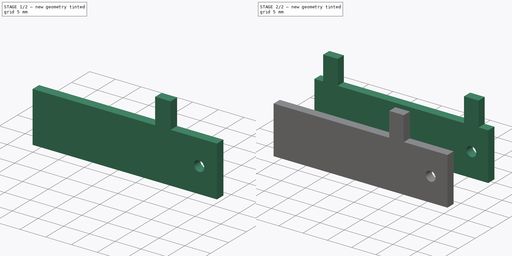
[diagram: build sequence overview — one tinted view per stage of 2, left to right]
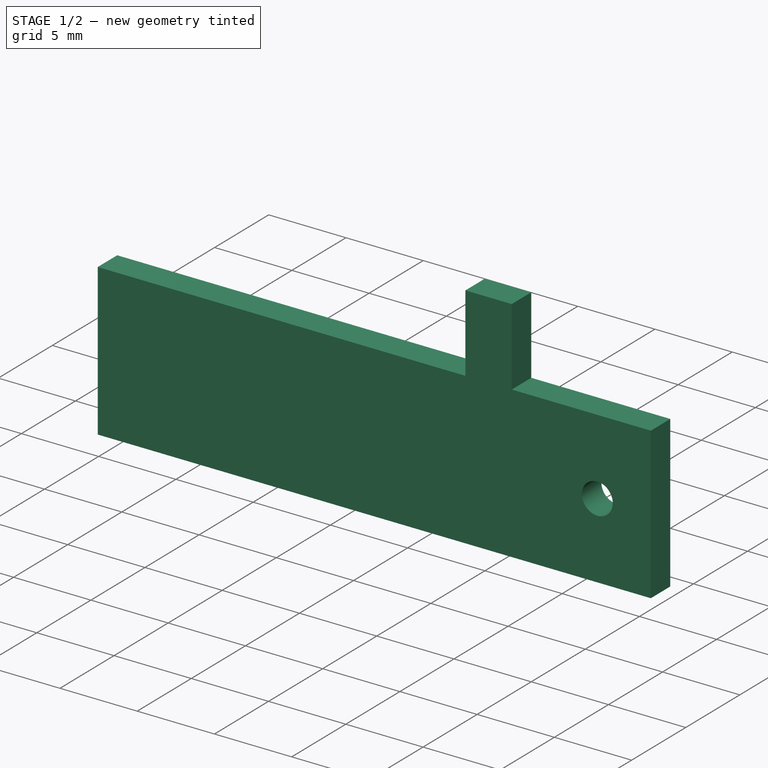
[diagram: stage 1 of 2 — iso view after this stage's code; geometry added in this stage tinted green]
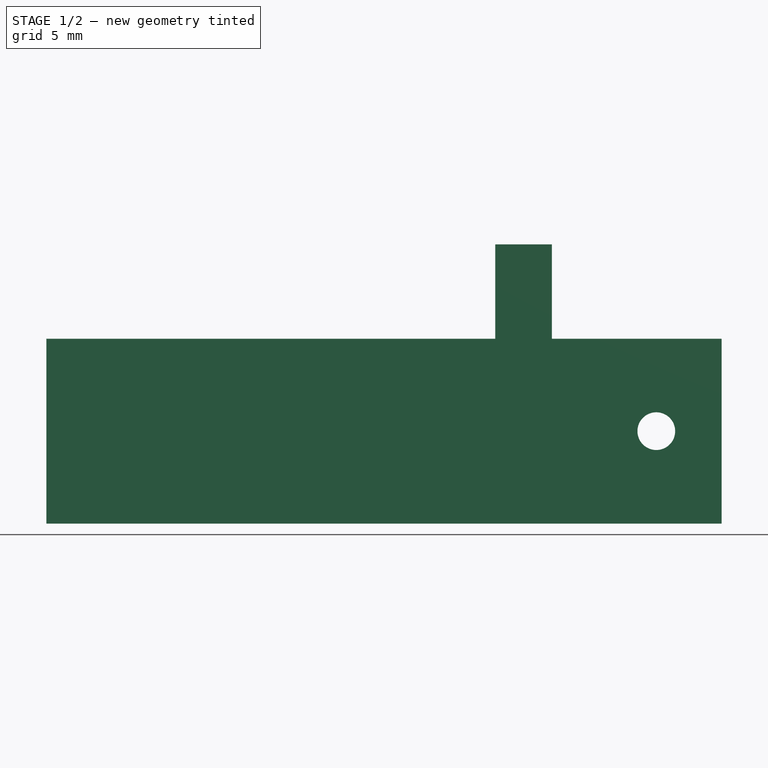
[diagram: stage 1 of 2 — front view after this stage's code; geometry added in this stage tinted green]
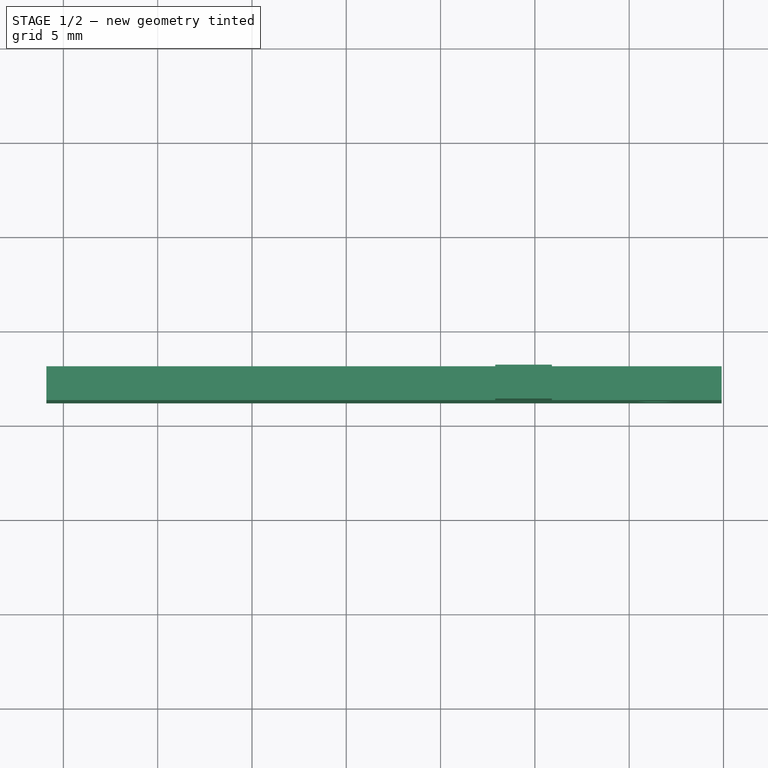
[diagram: stage 1 of 2 — top view after this stage's code; geometry added in this stage tinted green]
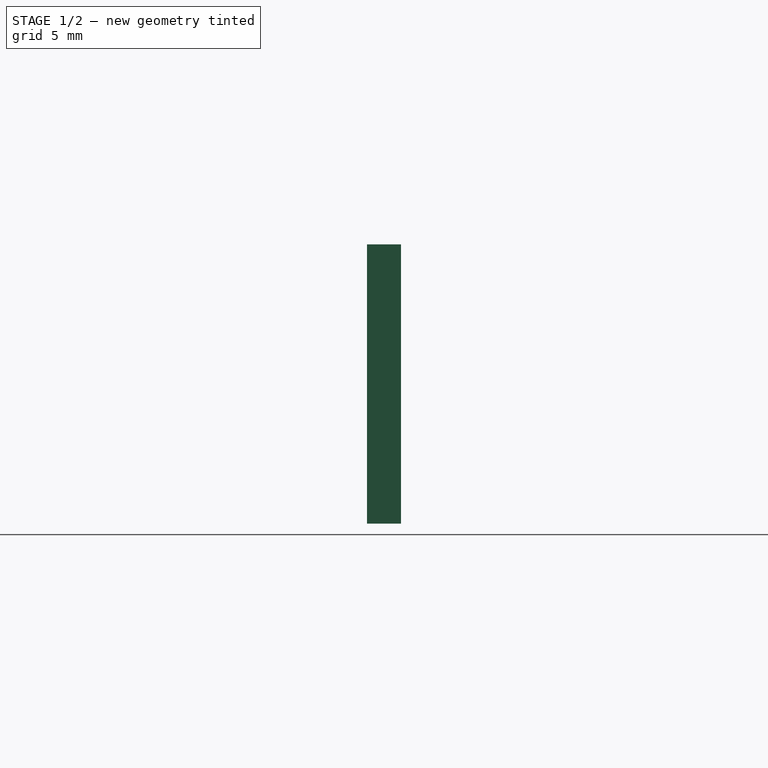
[diagram: stage 1 of 2 — right view after this stage's code; geometry added in this stage tinted green]
FCSTD DOCUMENT  (FreeCAD 0.20R29410 (Git))
Label: Position Holders
License: All rights reserved
LicenseURL: http://en.wikipedia.org/wiki/All_rights_reserved
objects: Sketcher::SketchObject×2, Part::Extrusion×2
note: 4 computed .brp shape members not serialized (recipe doc carries the construction recipe); baked Part::Feature solids carry a one-line shape summary decoded from their .brp

FEATURE [Sketcher::SketchObject] Sketch026  label="position_holder_side"
  FullyConstrained = true
  MapMode = 5
  Placement = pos=(0,53,0) rot=(0,0.707107,0.707107;3.14159rad)
  sketch-geometry (19):
    g0: LineSegment StartX=35.9 StartY=10 StartZ=0 EndX=35.9 EndY=0.2 EndZ=0
    g1: LineSegment StartX=35.9 StartY=0.2 StartZ=0 EndX=0.1 EndY=0.2 EndZ=0
    g2: LineSegment StartX=0.1 StartY=0.2 StartZ=0 EndX=0.1 EndY=10 EndZ=0
    g3: LineSegment StartX=36 StartY=10 StartZ=0 EndX=35.9 EndY=10 EndZ=0
    g4: LineSegment StartX=0.1 StartY=10 StartZ=0 EndX=0 EndY=10 EndZ=0
    g5: LineSegment StartX=35.9 StartY=0.2 StartZ=0 EndX=35.9 EndY=0 EndZ=0
    g6: LineSegment StartX=0.1 StartY=10 StartZ=0 EndX=9.1 EndY=10 EndZ=0
    g7: LineSegment StartX=35.9 StartY=10 StartZ=0 EndX=12.1 EndY=10 EndZ=0
    g8: LineSegment StartX=12.1 StartY=10 StartZ=0 EndX=12.1 EndY=15 EndZ=0
    g9: LineSegment StartX=12.1 StartY=15 StartZ=0 EndX=9.1 EndY=15 EndZ=0
    g10: LineSegment StartX=9.1 StartY=15 StartZ=0 EndX=9.1 EndY=10 EndZ=0
    g11: LineSegment StartX=12.1 StartY=15 StartZ=0 EndX=38.1 EndY=15 EndZ=0
    g12: LineSegment StartX=0 StartY=0 StartZ=0 EndX=36 EndY=0 EndZ=0
    g13: LineSegment StartX=36 StartY=10 StartZ=0 EndX=36 EndY=0 EndZ=0
    g14: LineSegment StartX=12.1 StartY=10 StartZ=0 EndX=9.1 EndY=10 EndZ=0
    g15: Circle CenterX=3.56266 CenterY=5.1 CenterZ=0 NormalX=0 NormalY=0 NormalZ=1 AngleXU=0 Radius=1
    g16: LineSegment StartX=0 StartY=0 StartZ=0 EndX=0 EndY=10 EndZ=0
    g17: LineSegment StartX=0.1 StartY=10 StartZ=0 EndX=3.56266 EndY=5.1 EndZ=0
    g18: LineSegment StartX=0.1 StartY=0.2 StartZ=0 EndX=3.56266 EndY=5.1 EndZ=0
  constraints (52):
    c: Coincident(g0,g1)
    c: Coincident(g1,g2)
    c: Horizontal(g1)
    c: Vertical(g0)
    c: Vertical(g2)
    c: Coincident(g5,g0)
    c: Vertical(g5)
    c: DistanceX(g3,g3) = 0.1
    c: DistanceY(g5,g5) = 0.2
    c: Coincident(g4,g2)
    c: Coincident(g0,g3)
    c: Coincident(g6,g2)
    c: Horizontal(g7)
    c: Coincident(g8,g7)
    c: Vertical(g8)
    c: Coincident(g9,g8)
    c: Horizontal(g9)
    c: Coincident(g10,g9)
    c: Coincident(g10,g6)
    c: Horizontal(g6)
    c: Vertical(g10)
    c: Coincident(g11,g8)
    c: Horizontal(g11)
    c: DistanceX(g9,g9) = 3
    c: DistanceX(g11,g11) = 26
    c: DistanceY(g10,g10) = 5
    c: DistanceX(g6,g6) = 9
    c: Horizontal(g12)
    c: Distance(g12) = 36
    c: Vertical(g13)
    c: Distance(g13) = 10
    c: Coincident(g13,g12)
    c: Coincident(g13,g3)
    c: PointOnObject(g5,g12)
    c: Horizontal(g3)
    c: Coincident(g14,g7)
    c: Coincident(g14,g6)
    c: Horizontal(g14)
    c: Coincident(g12,g-1)
    c: Coincident(g7,g0)
    c: Horizontal(g4)
    c: Coincident(g16,g12)
    c: Coincident(g16,g4)
    c: Vertical(g16)
    c: Equal(g4,g3)
    c: Coincident(g17,g2)
    c: Coincident(g17,g15)
    c: Coincident(g18,g1)
    c: Coincident(g18,g15)
    c: Equal(g17,g18)
    c: Diameter(g15) = 2
    c: Distance(g17) = 6
FEATURE [Part::Extrusion] Extrude028  label="position_holder_side_body"
  Base = -> Sketch026
  Dir = (0,1,-2e-16)
  DirMode = 2
  FaceMakerClass = Part::FaceMakerBullseye
  LengthFwd = 0
  LengthRev = 1.8
  Solid = true
  Symmetric = false
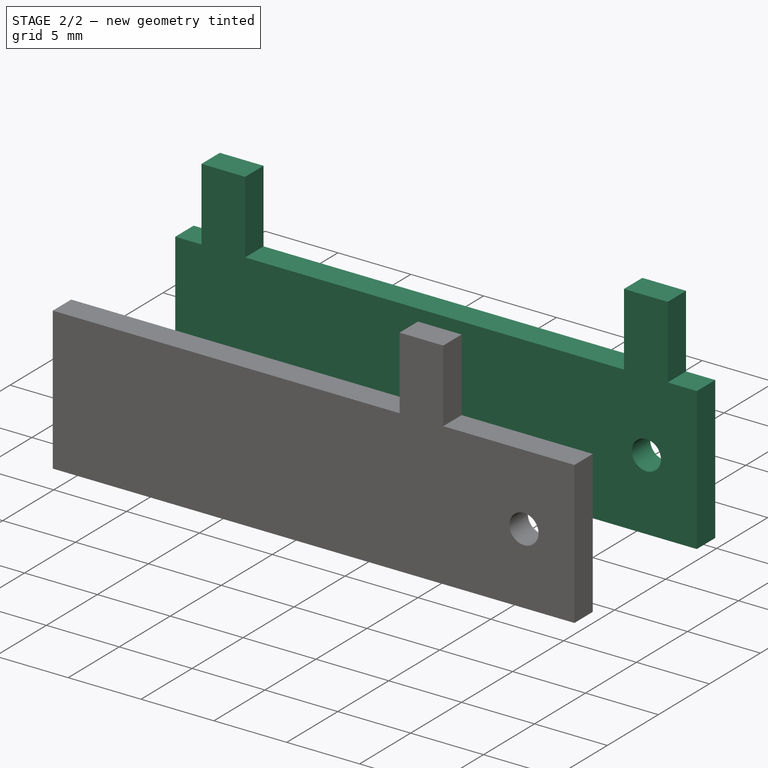
[diagram: stage 2 of 2 — iso view after this stage's code; geometry added in this stage tinted green]
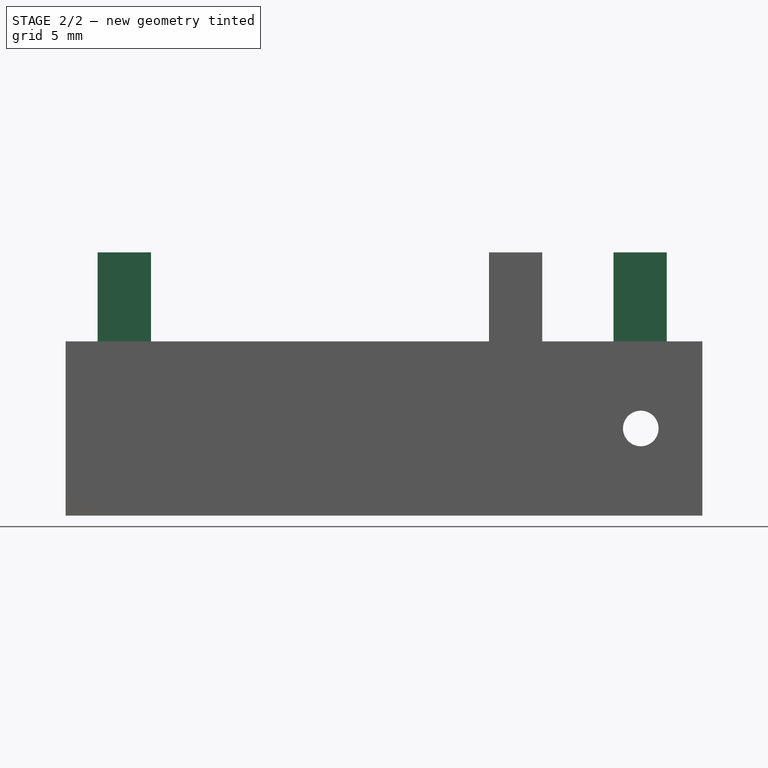
[diagram: stage 2 of 2 — front view after this stage's code; geometry added in this stage tinted green]
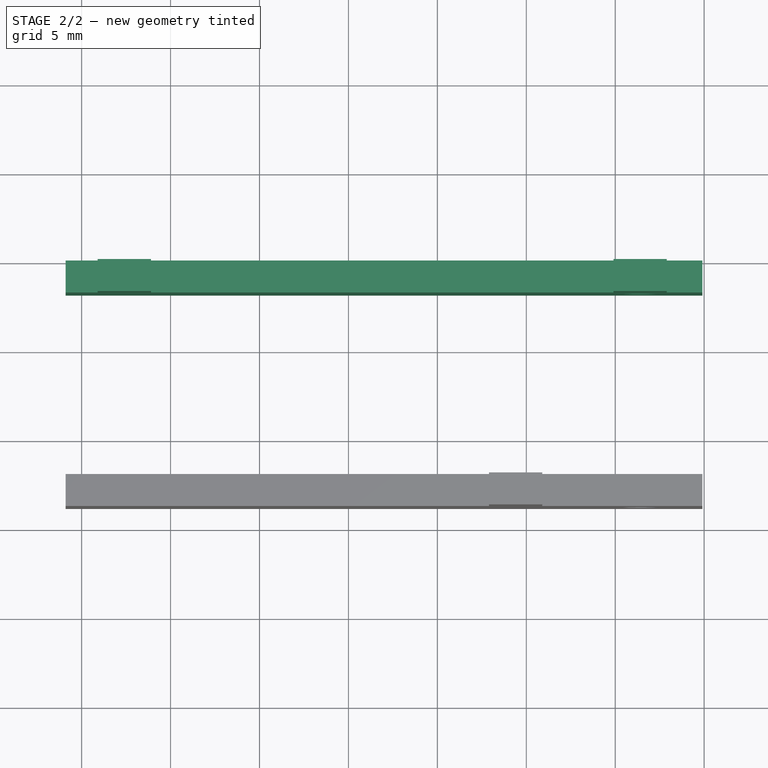
[diagram: stage 2 of 2 — top view after this stage's code; geometry added in this stage tinted green]
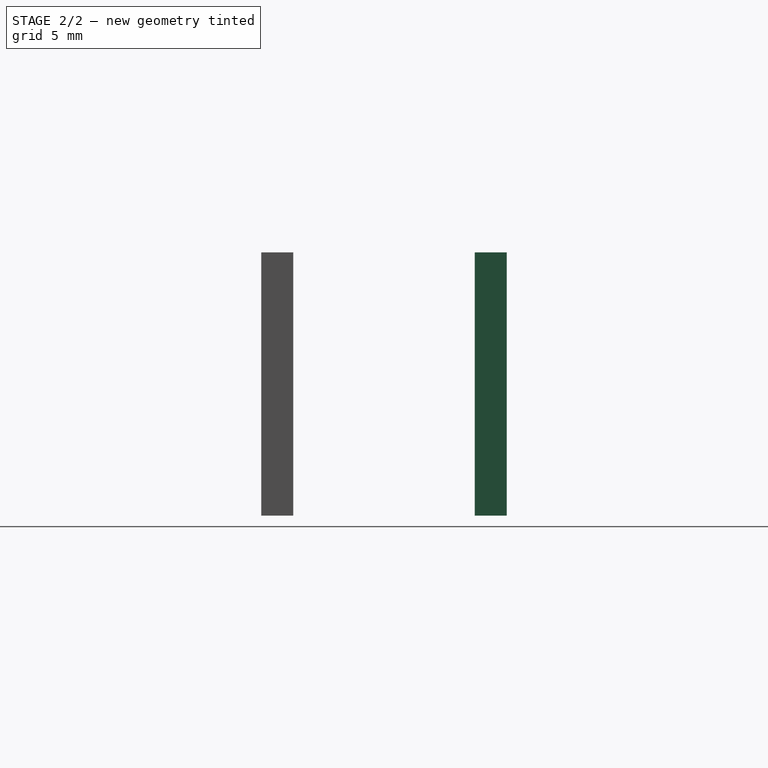
[diagram: stage 2 of 2 — right view after this stage's code; geometry added in this stage tinted green]
FEATURE [Sketcher::SketchObject] Sketch025  label="position_holder_mid"
  FullyConstrained = true
  MapMode = 5
  Placement = pos=(0,53,0) rot=(0,0.707107,0.707107;3.14159rad)
  sketch-geometry (24):
    g0: LineSegment StartX=35.9 StartY=10 StartZ=0 EndX=35.9 EndY=0.2 EndZ=0
    g1: LineSegment StartX=35.9 StartY=0.2 StartZ=0 EndX=0.1 EndY=0.2 EndZ=0
    g2: LineSegment StartX=0.1 StartY=0.2 StartZ=0 EndX=0.1 EndY=10 EndZ=0
    g3: LineSegment StartX=36 StartY=10 StartZ=0 EndX=35.9 EndY=10 EndZ=0
    g4: LineSegment StartX=0.1 StartY=10 StartZ=0 EndX=0 EndY=10 EndZ=0
    g5: LineSegment StartX=35.9 StartY=0.2 StartZ=0 EndX=35.9 EndY=0 EndZ=0
    g6: LineSegment StartX=0.1 StartY=10 StartZ=0 EndX=2.1 EndY=10 EndZ=0
    g7: LineSegment StartX=35.9 StartY=10 StartZ=0 EndX=34.1 EndY=10 EndZ=0
    g8: LineSegment StartX=31.1 StartY=10 StartZ=0 EndX=5.1 EndY=10 EndZ=0
    g9: LineSegment StartX=5.1 StartY=10 StartZ=0 EndX=5.1 EndY=15 EndZ=0
    g10: LineSegment StartX=5.1 StartY=15 StartZ=0 EndX=2.1 EndY=15 EndZ=0
    g11: LineSegment StartX=2.1 StartY=15 StartZ=0 EndX=2.1 EndY=10 EndZ=0
    g12: LineSegment StartX=34.1 StartY=10 StartZ=0 EndX=34.1 EndY=15 EndZ=0
    g13: LineSegment StartX=34.1 StartY=15 StartZ=0 EndX=31.1 EndY=15 EndZ=0
    g14: LineSegment StartX=31.1 StartY=15 StartZ=0 EndX=31.1 EndY=10 EndZ=0
    g15: LineSegment StartX=5.1 StartY=15 StartZ=0 EndX=31.1 EndY=15 EndZ=0
    g16: LineSegment StartX=0 StartY=0 StartZ=0 EndX=36 EndY=0 EndZ=0
    g17: LineSegment StartX=36 StartY=10 StartZ=0 EndX=36 EndY=0 EndZ=0
    g18: LineSegment StartX=0 StartY=10 StartZ=0 EndX=0 EndY=0 EndZ=0
    g19: LineSegment StartX=34.1 StartY=10 StartZ=0 EndX=31.1 EndY=10 EndZ=0
    g20: LineSegment StartX=5.1 StartY=10 StartZ=0 EndX=2.1 EndY=10 EndZ=0
    g21: Circle CenterX=3.56266 CenterY=5.1 CenterZ=0 NormalX=0 NormalY=0 NormalZ=1 AngleXU=0 Radius=1
    g22: LineSegment StartX=0.1 StartY=10 StartZ=0 EndX=3.56266 EndY=5.1 EndZ=0
    g23: LineSegment StartX=0.1 StartY=0.2 StartZ=0 EndX=3.56266 EndY=5.1 EndZ=0
  constraints (65):
    c: Coincident(g0,g1)
    c: Coincident(g1,g2)
    c: Horizontal(g1)
    c: Vertical(g0)
    c: Vertical(g2)
    c: Coincident(g5,g0)
    c: Vertical(g5)
    c: DistanceX(g3,g3) = 0.1
    c: DistanceY(g5,g5) = 0.2
    c: Coincident(g4,g2)
    c: Coincident(g0,g3)
    c: Coincident(g6,g2)
    c: Coincident(g7,g0)
    c: Horizontal(g8)
    c: Coincident(g9,g8)
    c: Vertical(g9)
    c: Coincident(g10,g9)
    c: Horizontal(g10)
    c: Coincident(g11,g10)
    c: Coincident(g11,g6)
    c: Coincident(g12,g7)
    c: Coincident(g13,g12)
    c: Coincident(g14,g13)
    c: Coincident(g14,g8)
    c: Vertical(g14)
    c: Horizontal(g7)
    c: Horizontal(g6)
    c: Vertical(g12)
    c: Horizontal(g13)
    c: Vertical(g11)
    c: Coincident(g15,g9)
    c: Coincident(g15,g13)
    c: Horizontal(g15)
    c: Equal(g10,g13)
    c: DistanceX(g10,g10) = 3
    c: DistanceX(g15,g15) = 26
    c: DistanceY(g11,g11) = 5
    c: DistanceX(g6,g6) = 2
    c: Equal(g3,g4)
    c: Horizontal(g16)
    c: Distance(g16) = 36
    c: Vertical(g17)
    c: Distance(g17) = 10
    c: Coincident(g17,g16)
    c: Coincident(g17,g3)
    c: PointOnObject(g5,g16)
    c: Coincident(g18,g4)
    c: Coincident(g18,g16)
    c: Vertical(g18)
    c: Horizontal(g3)
    c: Horizontal(g4)
    c: Coincident(g19,g7)
    c: Coincident(g19,g8)
    c: Horizontal(g19)
    c: Coincident(g20,g8)
    c: Coincident(g20,g6)
    c: Horizontal(g20)
    c: Coincident(g16,g-1)
    c: Diameter(g21) = 2
    c: Coincident(g22,g2)
    c: Coincident(g22,g21)
    c: Coincident(g23,g1)
    c: Coincident(g23,g21)
    c: Equal(g23,g22)
    c: Distance(g22) = 6
FEATURE [Part::Extrusion] Extrude027  label="position_holder_mid_body"
  Base = -> Sketch025
  Dir = (0,1,-2e-16)
  DirMode = 2
  FaceMakerClass = Part::FaceMakerBullseye
  LengthFwd = 0
  LengthRev = 1.8
  Placement = pos=(0,12,0) rot=(0,0,1;0rad)
  Solid = true
  Symmetric = false
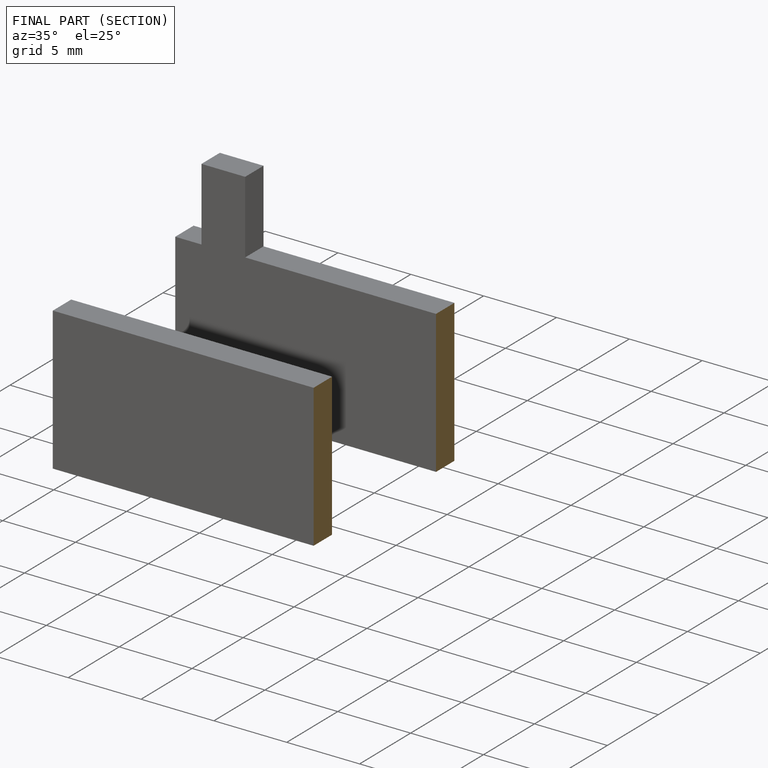
[diagram: finished part — half-section view (interior)]
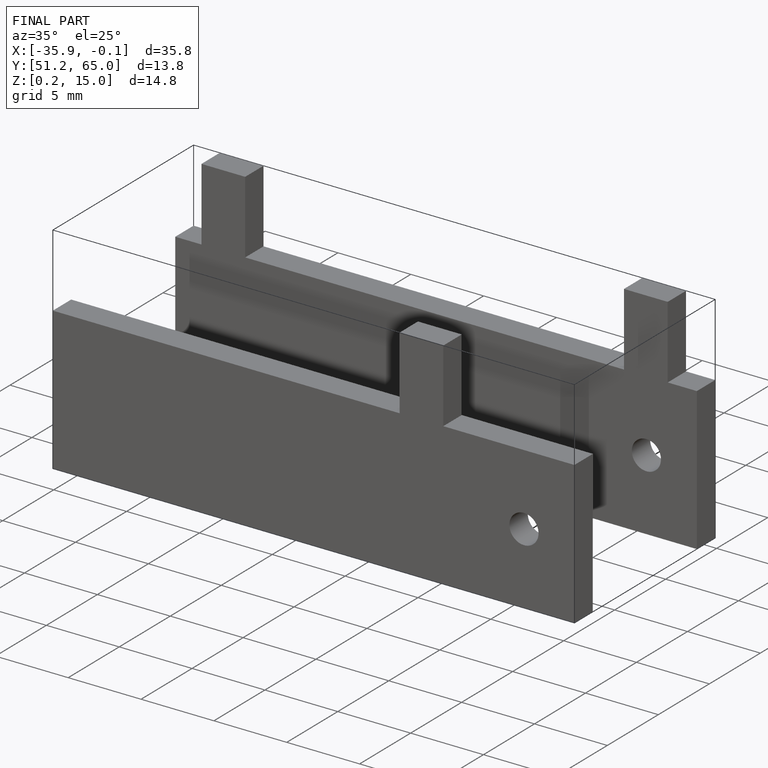
[diagram: finished part — iso view with bounding-box wireframe]
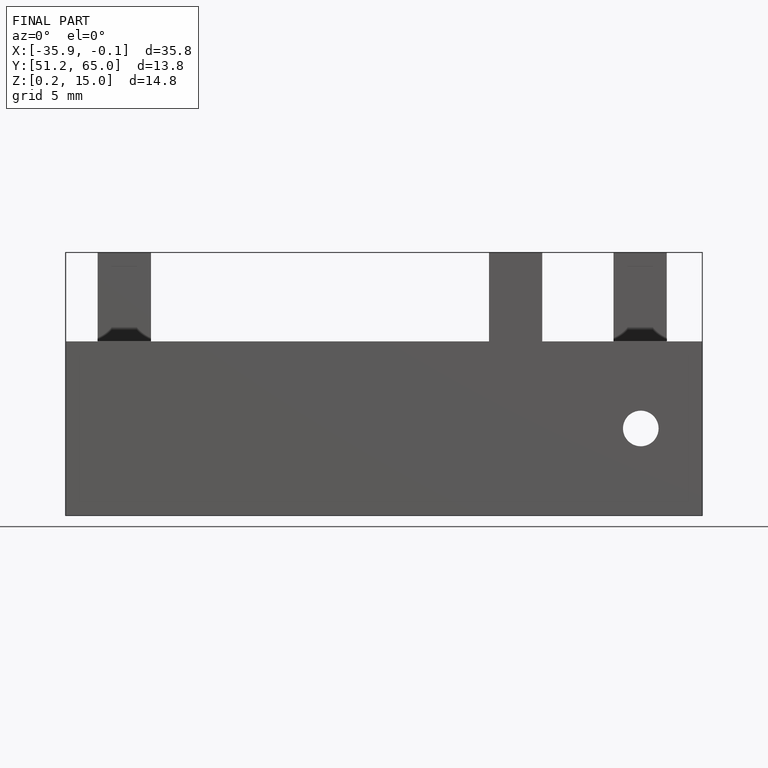
[diagram: finished part — front view with bounding-box wireframe]
